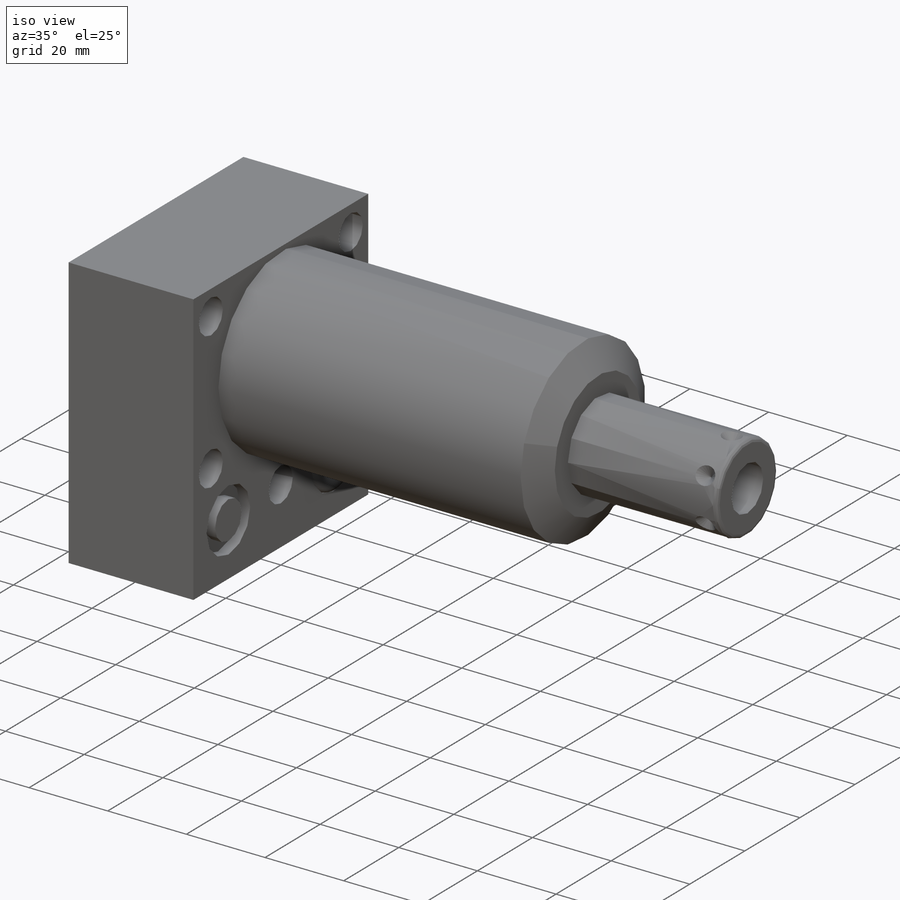
[diagram: iso view]
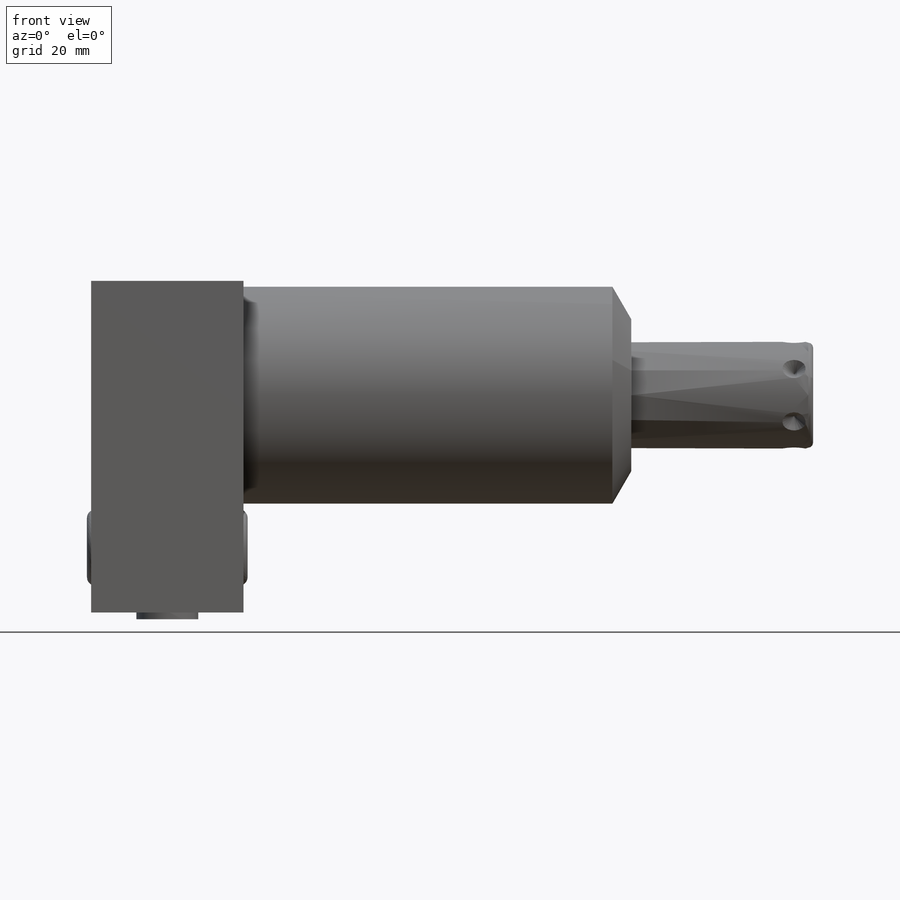
[diagram: front view]
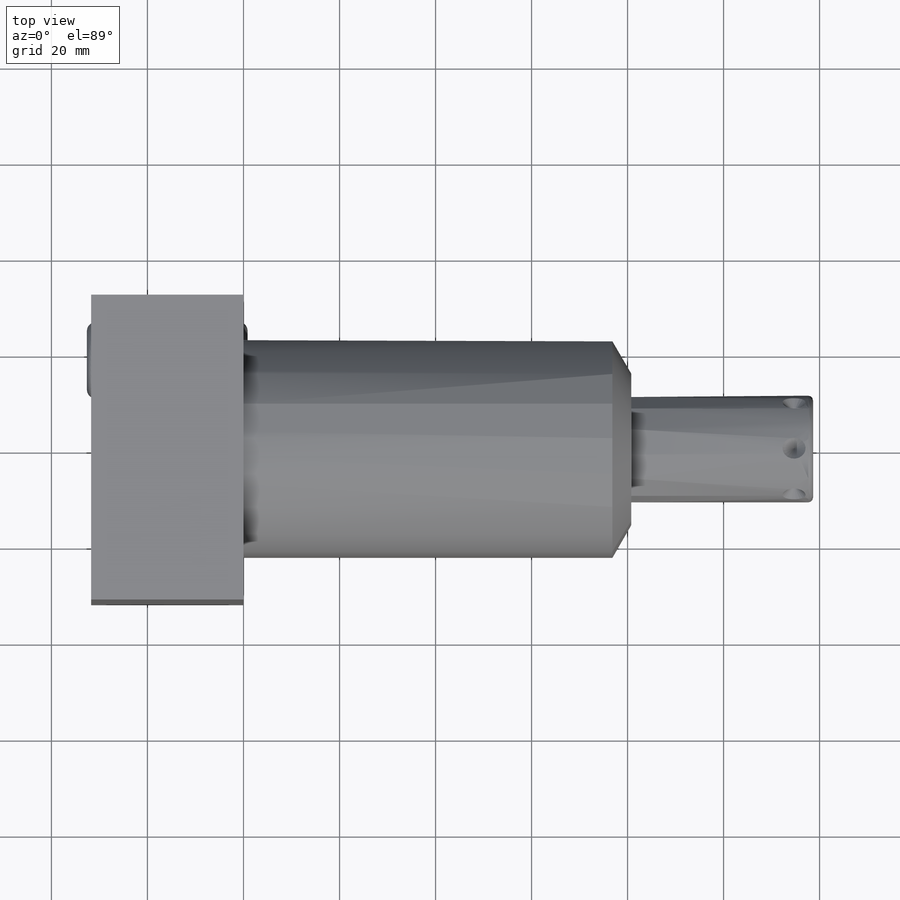
[diagram: top view]
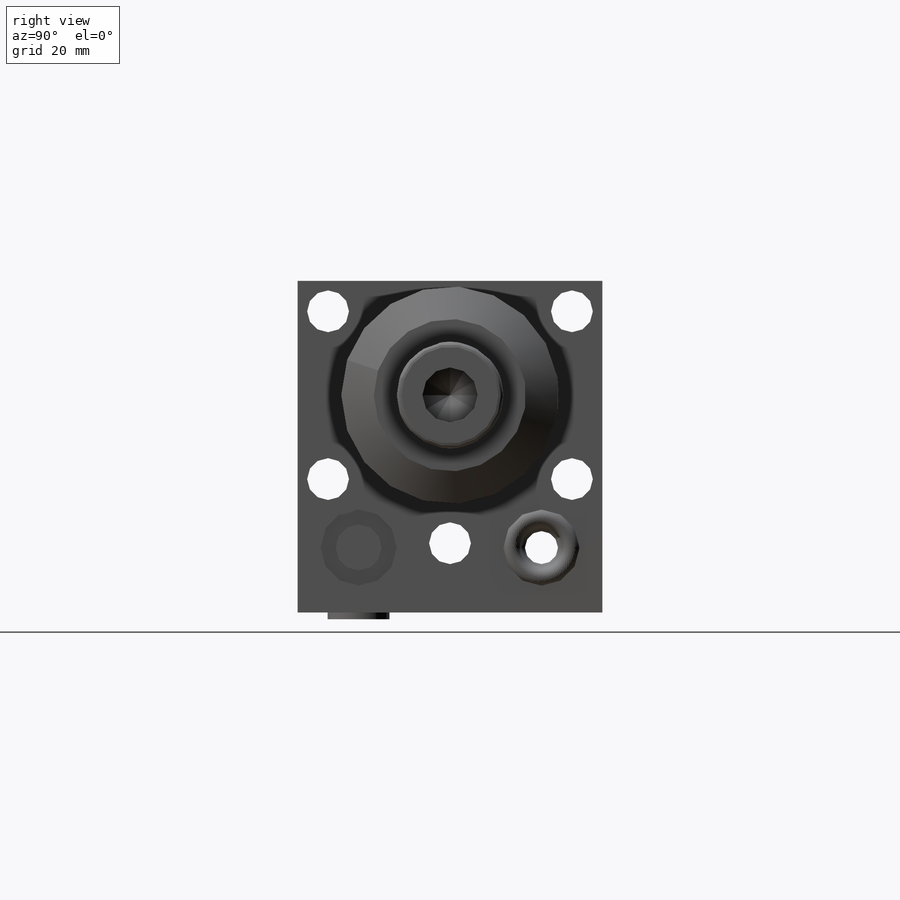
[diagram: right view]
SOLIDWORKS PART (.sldprt)
format: sldprt  version: not decoded by parser v0  size: 551,936 bytes
history: native  units: mm
features: sketch x21, plane x17, cut_revolve x9, cut_extrude x4, extrude x3, revolve x3, material x1, pattern_circular x1, hole x1 (+11 scaffold rows collapsed)
feature tree (71):
  scaffold x11  (default folders/planes/origin — collapsed)
  material  "Alloy Steel"
  plane  "Plane1"
  sketch  "Sketch1"  dims[D1=63.5mm D2=69.088mm D3=23.8252mm]
  extrude  "Extrude1"  Depth=80.772mm
  plane  "Plane2"
  sketch  "Sketch2"  dims[D1=45.339mm D2=0.0mm]
  cut_extrude  "Cut-Extrude1"  [1 undecoded]
  plane  "Plane3"
  sketch  "Sketch3"  dims[c1.D1=31.75mm c1.D2=7.8105mm c2.D2=30.0deg]
  cut_revolve  "Cut-Revolve1"  Angle=360deg
  plane  "Plane4"
  sketch  "S2D0002"  dims[D1=13.97mm]
  cut_revolve  "Cut-Revolve2"  Angle=360deg
  plane  "Plane5"
  sketch  "Sketch5"  dims[D1=13.97mm]
  cut_revolve  "Cut-Revolve3"  Angle=360deg
  plane  "Plane6"
  sketch  "Sketch6"  dims[D1=12.192mm]
  cut_revolve  "Cut-Revolve4"  Angle=360deg
  plane  "Plane7"
  sketch  "Sketch7"  dims[D1=12.192mm]
  cut_revolve  "Cut-Revolve5"  Angle=360deg
  plane  "Plane8"
  sketch  "Sketch8"  dims[D1=19.05mm D2=0.254mm]
  cut_revolve  "Cut-Revolve6"  Angle=360deg
  plane  "Plane9"
  sketch  "Sketch9"  dims[D1=19.05mm D2=0.254mm]
  cut_revolve  "Cut-Revolve7"  Angle=360deg
  plane  "Plane10"
  sketch  "Sketch18"  dims[D1=15.875mm]
  cut_extrude  "Cut-Extrude2"  Depth=2.667mm
  sketch  "Sketch19"  dims[D1=15.875mm]
  cut_extrude  "Cut-Extrude3"  Depth=2.667mm
  sketch  "Sketch20"  dims[D1=19.05mm]
  cut_extrude  "Cut-Extrude4"  Depth=0.254mm
  sketch  "Sketch10"  dims[D2=1.016mm D1=22.225mm D3=150.3934mm]
  revolve  "Revolve1"  Angle=360deg
  plane  "Plane11"
  sketch  "S2D0001"  dims[c1.D1=11.5062mm c1.D2=17.018mm c1.D3=5.7531mm c2.D3=59.0deg]
  cut_revolve  "Cut-Revolve8"  Angle=360deg
  plane  "Plane12"
  sketch  "Sketch12"  dims[D1=12.8778mm]
  extrude  "Extrude2"  Depth=1.651mm
  sketch  "Sketch13"  dims[D1=9.6012mm]
  plane  "Plane13"
  extrude  "Extrude3"  [1 undecoded]
  plane  "Plane14"
  sketch  "Sketch14"  dims[D1=3.5306mm D2=12.3444mm]
  revolve  "Revolve2"  Angle=360deg
  plane  "Plane15"
  sketch  "Sketch15"  dims[D1=3.5306mm D2=12.3444mm]
  revolve  "Revolve3"  Angle=360deg
  plane  "Plane16"
  sketch  "Sketch16"  dims[c1.D1=3.9624mm c1.D2=4.826mm c1.D3=2.413mm c2.D3=45.0deg]
  plane  "Plane17"
  cut_revolve  "Cut-Revolve9"  Angle=360deg
  pattern_circular  "CirPattern1"  Count=6 Angle=360deg
  hole  "Hole1"  Diameter=8.7122mm Depth=31.75mm
  sketch  "Sketch22"  dims[D1=25.4mm D2=17.4752mm D3=30.8356mm]
  sketch  "Sketch21"  dims[Diameter=8.7122mm Depth=31.75mm]
decode coverage: 40 of 42 modeling features carry decoded parameters
note: 2 parameter values undecoded
note: suppression state not decoded; provenance and decode notes live in map.json
